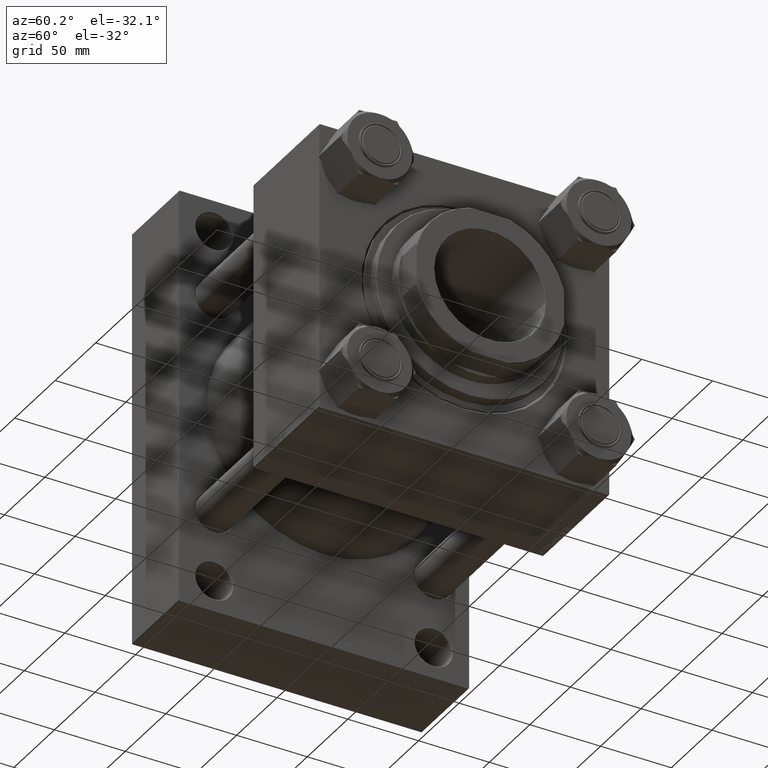
[diagram: clean part render]
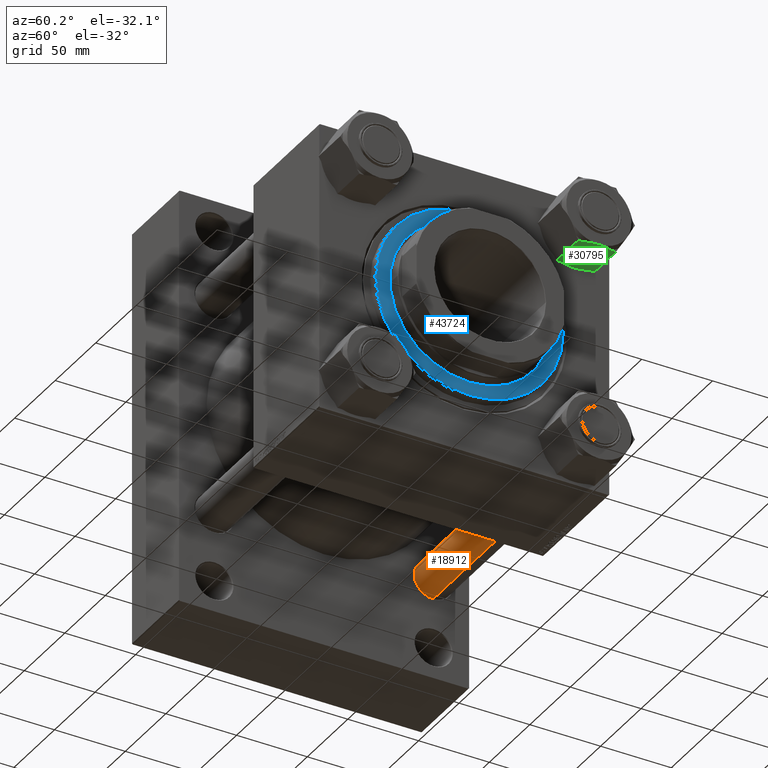
[diagram: same view with three faces highlighted in distinct colors, each labeled with its STEP entity id]
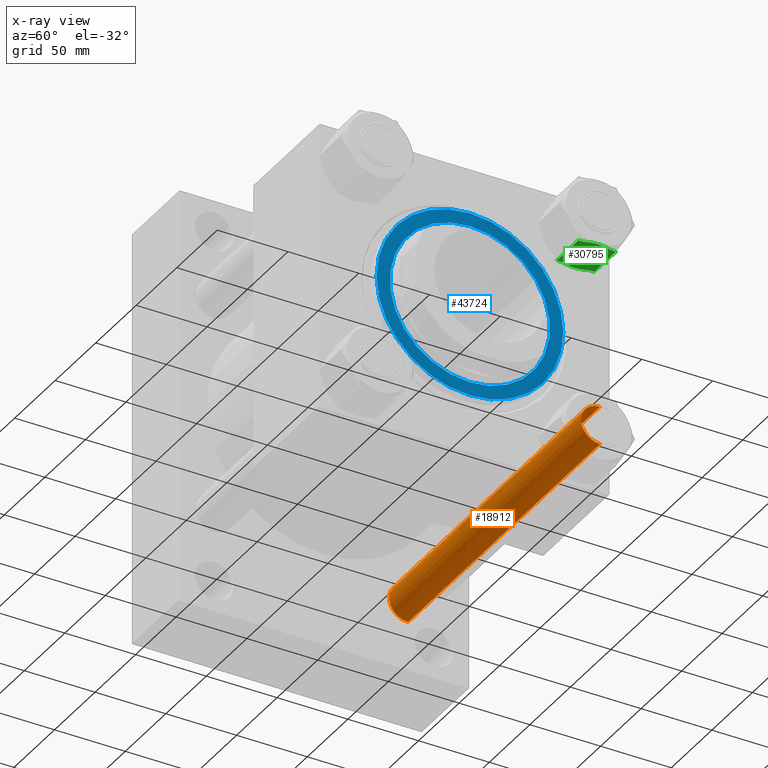
[diagram: x-ray of the same camera — body ghosted, the three highlighted faces saturated]
A machine part, auxiliary view with three faces highlighted in distinct colors.
The next image is the same camera in x-ray (body ghosted, the three faces saturated) — at least one of them is partly hidden behind the body in this view.
Their STEP definitions:

[orange] entity #18912 — the highlighted cylindrical surface (edge-blend (fillet) strip) has radius 13.5 mm, axis along (-1, 0, 0).
#61 = VERTEX_POINT ( 'NONE', #42619 ) ;
#2267 = AXIS2_PLACEMENT_3D ( 'NONE', #41243, #9824, #17482 ) ;
#2341 = EDGE_CURVE ( 'NONE', #61, #2547, #25649, .T. ) ;
#2531 = DIRECTION ( 'NONE',  ( 0.000000000000000000, 0.000000000000000000, -1.000000000000000000 ) ) ;
#2547 = VERTEX_POINT ( 'NONE', #40011 ) ;
#4236 = VECTOR ( 'NONE', #19141, 1000.000000000000000 ) ;
#5855 = CARTESIAN_POINT ( 'NONE',  ( 0.000000000000000000, 0.000000000000000000, 237.5000000000000853 ) ) ;
#8569 = AXIS2_PLACEMENT_3D ( 'NONE', #14091, #45512, #26103 ) ;
#9156 = DIRECTION ( 'NONE',  ( 1.000000000000000000, 0.000000000000000000, 0.000000000000000000 ) ) ;
#9332 = AXIS2_PLACEMENT_3D ( 'NONE', #5855, #2531, #9156 ) ;
#9824 = DIRECTION ( 'NONE',  ( -0.000000000000000000, -0.000000000000000000, 1.000000000000000000 ) ) ;
#12834 = CARTESIAN_POINT ( 'NONE',  ( 13.50000000000000000, 1.653273178848926867E-15, 238.0000000000000000 ) ) ;
#14091 = CARTESIAN_POINT ( 'NONE',  ( 0.000000000000000000, 0.000000000000000000, 238.0000000000000000 ) ) ;
#15808 = LINE ( 'NONE', #31400, #4236 ) ;
#16492 = ORIENTED_EDGE ( 'NONE', *, *, #42775, .F. ) ;
#17438 = DIRECTION ( 'NONE',  ( -0.000000000000000000, -0.000000000000000000, -1.000000000000000000 ) ) ;
#17482 = DIRECTION ( 'NONE',  ( 1.000000000000000000, 0.000000000000000000, 0.000000000000000000 ) ) ;
#17932 = CYLINDRICAL_SURFACE ( 'NONE', #8569, 13.50000000000000000 ) ;
#18912 = ADVANCED_FACE ( 'NONE', ( #21746 ), #17932, .T. ) ;
#19079 = CARTESIAN_POINT ( 'NONE',  ( 13.50000000000000000, 1.653273178848926867E-15, 0.4999999999999726885 ) ) ;
#19141 = DIRECTION ( 'NONE',  ( -0.000000000000000000, -0.000000000000000000, -1.000000000000000000 ) ) ;
#20073 = VERTEX_POINT ( 'NONE', #39315 ) ;
#21746 = FACE_OUTER_BOUND ( 'NONE', #42271, .T. ) ;
#23197 = ORIENTED_EDGE ( 'NONE', *, *, #47221, .T. ) ;
#25649 = CIRCLE ( 'NONE', #9332, 13.50000000000000000 ) ;
#26103 = DIRECTION ( 'NONE',  ( -1.000000000000000000, 0.000000000000000000, 0.000000000000000000 ) ) ;
#28439 = ORIENTED_EDGE ( 'NONE', *, *, #2341, .T. ) ;
#29045 = EDGE_CURVE ( 'NONE', #45544, #20073, #36515, .T. ) ;
#31400 = CARTESIAN_POINT ( 'NONE',  ( -13.50000000000000000, 0.000000000000000000, 238.0000000000000000 ) ) ;
#36515 = CIRCLE ( 'NONE', #2267, 13.50000000000000000 ) ;
#39315 = CARTESIAN_POINT ( 'NONE',  ( -13.50000000000000000, 0.000000000000000000, 0.4999999999999726885 ) ) ;
#39932 = LINE ( 'NONE', #12834, #49702 ) ;
#40011 = CARTESIAN_POINT ( 'NONE',  ( 13.50000000000000000, 1.653273178848926867E-15, 237.5000000000000853 ) ) ;
#41243 = CARTESIAN_POINT ( 'NONE',  ( 0.000000000000000000, 0.000000000000000000, 0.4999999999999726885 ) ) ;
#41576 = ORIENTED_EDGE ( 'NONE', *, *, #29045, .T. ) ;
#42271 = EDGE_LOOP ( 'NONE', ( #28439, #23197, #41576, #16492 ) ) ;
#42619 = CARTESIAN_POINT ( 'NONE',  ( -13.50000000000000000, 0.000000000000000000, 237.5000000000000853 ) ) ;
#42775 = EDGE_CURVE ( 'NONE', #61, #20073, #15808, .T. ) ;
#45512 = DIRECTION ( 'NONE',  ( -0.000000000000000000, -0.000000000000000000, -1.000000000000000000 ) ) ;
#45544 = VERTEX_POINT ( 'NONE', #19079 ) ;
#47221 = EDGE_CURVE ( 'NONE', #2547, #45544, #39932, .T. ) ;
#49702 = VECTOR ( 'NONE', #17438, 1000.000000000000000 ) ;

[blue] entity #43724 — the highlighted planar face has unit normal (1, 0, 0).
#117 = CIRCLE ( 'NONE', #35195, 56.49999999999999289 ) ;
#1309 = ORIENTED_EDGE ( 'NONE', *, *, #11557, .F. ) ;
#2845 = CARTESIAN_POINT ( 'NONE',  ( 0.000000000000000000, 0.000000000000000000, 35.70000000000000284 ) ) ;
#3509 = CARTESIAN_POINT ( 'NONE',  ( -56.49999999999999289, 6.919254415182544548E-15, 35.70000000000000284 ) ) ;
#4271 = EDGE_CURVE ( 'NONE', #49653, #9681, #45307, .T. ) ;
#9681 = VERTEX_POINT ( 'NONE', #21084 ) ;
#10250 = DIRECTION ( 'NONE',  ( 1.000000000000000000, 0.000000000000000000, 0.000000000000000000 ) ) ;
#10331 = AXIS2_PLACEMENT_3D ( 'NONE', #10845, #42259, #34592 ) ;
#10845 = CARTESIAN_POINT ( 'NONE',  ( 0.000000000000000000, 0.000000000000000000, 35.70000000000000284 ) ) ;
#11397 = DIRECTION ( 'NONE',  ( 1.000000000000000000, 0.000000000000000000, -0.000000000000000000 ) ) ;
#11557 = EDGE_CURVE ( 'NONE', #22224, #18905, #16829, .T. ) ;
#11883 = DIRECTION ( 'NONE',  ( 1.000000000000000000, 0.000000000000000000, 0.000000000000000000 ) ) ;
#12969 = CARTESIAN_POINT ( 'NONE',  ( 66.00000000000000000, 8.113285044351216187E-15, 35.70000000000000284 ) ) ;
#13679 = AXIS2_PLACEMENT_3D ( 'NONE', #18301, #29802, #11397 ) ;
#16829 = CIRCLE ( 'NONE', #10331, 56.49999999999999289 ) ;
#18301 = CARTESIAN_POINT ( 'NONE',  ( 0.000000000000000000, 0.000000000000000000, 35.70000000000000284 ) ) ;
#18905 = VERTEX_POINT ( 'NONE', #25582 ) ;
#21084 = CARTESIAN_POINT ( 'NONE',  ( -66.00000000000000000, 0.000000000000000000, 35.70000000000000284 ) ) ;
#21742 = DIRECTION ( 'NONE',  ( 0.000000000000000000, 0.000000000000000000, 1.000000000000000000 ) ) ;
#21785 = ORIENTED_EDGE ( 'NONE', *, *, #41914, .F. ) ;
#21824 = DIRECTION ( 'NONE',  ( 1.000000000000000000, 0.000000000000000000, 0.000000000000000000 ) ) ;
#22224 = VERTEX_POINT ( 'NONE', #3509 ) ;
#22891 = FACE_BOUND ( 'NONE', #34229, .T. ) ;
#25582 = CARTESIAN_POINT ( 'NONE',  ( 56.49999999999999289, 0.000000000000000000, 35.70000000000000284 ) ) ;
#25725 = AXIS2_PLACEMENT_3D ( 'NONE', #2845, #21742, #10250 ) ;
#26353 = EDGE_LOOP ( 'NONE', ( #29344, #36210 ) ) ;
#26730 = AXIS2_PLACEMENT_3D ( 'NONE', #26974, #31063, #11883 ) ;
#26974 = CARTESIAN_POINT ( 'NONE',  ( 0.000000000000000000, 0.000000000000000000, 35.70000000000000284 ) ) ;
#27329 = EDGE_CURVE ( 'NONE', #9681, #49653, #27536, .T. ) ;
#27536 = CIRCLE ( 'NONE', #26730, 66.00000000000000000 ) ;
#29344 = ORIENTED_EDGE ( 'NONE', *, *, #27329, .T. ) ;
#29802 = DIRECTION ( 'NONE',  ( 0.000000000000000000, 0.000000000000000000, 1.000000000000000000 ) ) ;
#30815 = PLANE ( 'NONE',  #13679 ) ;
#31063 = DIRECTION ( 'NONE',  ( 0.000000000000000000, 0.000000000000000000, 1.000000000000000000 ) ) ;
#33585 = CARTESIAN_POINT ( 'NONE',  ( 0.000000000000000000, 0.000000000000000000, 35.70000000000000284 ) ) ;
#34229 = EDGE_LOOP ( 'NONE', ( #21785, #1309 ) ) ;
#34588 = DIRECTION ( 'NONE',  ( 0.000000000000000000, 0.000000000000000000, 1.000000000000000000 ) ) ;
#34592 = DIRECTION ( 'NONE',  ( 1.000000000000000000, 0.000000000000000000, 0.000000000000000000 ) ) ;
#35195 = AXIS2_PLACEMENT_3D ( 'NONE', #33585, #34588, #21824 ) ;
#36210 = ORIENTED_EDGE ( 'NONE', *, *, #4271, .T. ) ;
#38235 = FACE_OUTER_BOUND ( 'NONE', #26353, .T. ) ;
#41914 = EDGE_CURVE ( 'NONE', #18905, #22224, #117, .T. ) ;
#42259 = DIRECTION ( 'NONE',  ( 0.000000000000000000, 0.000000000000000000, 1.000000000000000000 ) ) ;
#43724 = ADVANCED_FACE ( 'NONE', ( #22891, #38235 ), #30815, .T. ) ;
#45307 = CIRCLE ( 'NONE', #25725, 66.00000000000000000 ) ;
#49653 = VERTEX_POINT ( 'NONE', #12969 ) ;

[green] entity #30795 — the highlighted planar face has unit normal (-0, -0, 1).
#1939 = EDGE_CURVE ( 'NONE', #29068, #43513, #17045, .T. ) ;
#2384 = CARTESIAN_POINT ( 'NONE',  ( 6.641506094493679235, -23.05359624874176205, -0.8844859522422295894 ) ) ;
#2641 = CARTESIAN_POINT ( 'NONE',  ( 0.8470567002417638269, -23.05359624874175140, -0.01168982920648786727 ) ) ;
#2675 = DIRECTION ( 'NONE',  ( -1.000000000000000000, -1.303323422972807304E-16, 0.000000000000000000 ) ) ;
#3209 = VERTEX_POINT ( 'NONE', #15342 ) ;
#4069 = CARTESIAN_POINT ( 'NONE',  ( -2.113373616412105971, -23.05359624874176916, -30.90705919660667078 ) ) ;
#4348 = LINE ( 'NONE', #38588, #24445 ) ;
#4563 = CARTESIAN_POINT ( 'NONE',  ( 3.004629197474319246E-15, -23.05359624874176916, -31.00000000000000000 ) ) ;
#5195 = B_SPLINE_CURVE_WITH_KNOTS ( 'NONE', 3,
 ( #10554, #34301, #2641, #18974, #6218, #41962, #49133, #2384, #34045, #6976 ),
 .UNSPECIFIED., .F., .F.,
 ( 4, 2, 2, 2, 4 ),
 ( 0.04709422404877768725, 0.04834823400549317224, 0.04960224396220865029, 0.05211026387563961332, 0.05712630370250153244 ),
 .UNSPECIFIED. ) ;
#5831 = CARTESIAN_POINT ( 'NONE',  ( 3.004629197474319246E-15, -23.05359624874176916, -31.00000000000000000 ) ) ;
#6218 = CARTESIAN_POINT ( 'NONE',  ( 2.113373616412109968, -23.05359624874176205, -0.09294080339332899676 ) ) ;
#6360 = CARTESIAN_POINT ( 'NONE',  ( -5.801497649255014544, -23.05359624874176205, -0.7053567131665616774 ) ) ;
#6587 = B_SPLINE_CURVE_WITH_KNOTS ( 'NONE', 3,
 ( #27839, #43416, #21925, #17328, #6360, #25503, #37260, #32655 ),
 .UNSPECIFIED., .F., .F.,
 ( 4, 2, 2, 4 ),
 ( 0.03704433557245612185, 0.03955680769153651494, 0.04206927981061690802, 0.04709422404877768725 ),
 .UNSPECIFIED. ) ;
#6889 = VECTOR ( 'NONE', #32368, 1000.000000000000000 ) ;
#6976 = CARTESIAN_POINT ( 'NONE',  ( 9.808893158505085808, -23.05359624874176205, -2.000000000000000000 ) ) ;
#7013 = CARTESIAN_POINT ( 'NONE',  ( 13.31000000000000938, -23.05359624874175850, -28.99999999999999645 ) ) ;
#7377 = B_SPLINE_CURVE_WITH_KNOTS ( 'NONE', 3,
 ( #13471, #24470, #48734, #39803, #44902, #40551, #21391, #5831 ),
 .UNSPECIFIED., .F., .F.,
 ( 4, 2, 2, 4 ),
 ( 0.03704433557245612185, 0.03955680769153651494, 0.04206927981061690802, 0.04709422404877769419 ),
 .UNSPECIFIED. ) ;
#8081 = CARTESIAN_POINT ( 'NONE',  ( 13.31000000000000938, -23.05359624874175850, -31.00000000000000000 ) ) ;
#9421 = EDGE_CURVE ( 'NONE', #43513, #44210, #6587, .T. ) ;
#10554 = CARTESIAN_POINT ( 'NONE',  ( 3.004629197474320035E-15, -23.05359624874177271, 0.000000000000000000 ) ) ;
#13471 = CARTESIAN_POINT ( 'NONE',  ( 9.808893158505096466, -23.05359624874176205, -28.99999999999999645 ) ) ;
#14258 = CARTESIAN_POINT ( 'NONE',  ( 13.31000000000000938, -23.05359624874175850, -31.00000000000000000 ) ) ;
#14836 = ORIENTED_EDGE ( 'NONE', *, *, #34249, .F. ) ;
#15342 = CARTESIAN_POINT ( 'NONE',  ( -9.808893158505089360, -23.05359624874176205, -28.99999999999999645 ) ) ;
#16951 = EDGE_CURVE ( 'NONE', #34402, #3209, #40022, .T. ) ;
#17045 = LINE ( 'NONE', #24701, #6889 ) ;
#17322 = FACE_OUTER_BOUND ( 'NONE', #47992, .T. ) ;
#17328 = CARTESIAN_POINT ( 'NONE',  ( -6.612214801278793352, -23.05359624874175495, -0.9172679422720545483 ) ) ;
#17583 = PLANE ( 'NONE',  #42344 ) ;
#18674 = EDGE_CURVE ( 'NONE', #27174, #33102, #46581, .T. ) ;
#18974 = CARTESIAN_POINT ( 'NONE',  ( 1.693046291327868325, -23.05359624874175850, -0.05822588947892674838 ) ) ;
#19416 = DIRECTION ( 'NONE',  ( -1.000000000000000000, -1.303323422972807304E-16, 0.000000000000000000 ) ) ;
#19882 = CARTESIAN_POINT ( 'NONE',  ( -9.808893158505089360, -23.05359624874176205, -28.99999999999999645 ) ) ;
#21391 = CARTESIAN_POINT ( 'NONE',  ( 1.690332161126413713, -23.05359624874176205, -31.00000000000001421 ) ) ;
#21820 = LINE ( 'NONE', #7013, #47782 ) ;
#21925 = CARTESIAN_POINT ( 'NONE',  ( -8.222377524857041209, -23.05359624874176205, -1.410427084452070101 ) ) ;
#22064 = EDGE_CURVE ( 'NONE', #41763, #34402, #7377, .T. ) ;
#22372 = CARTESIAN_POINT ( 'NONE',  ( 9.808893158505085808, -23.05359624874176205, -2.000000000000000000 ) ) ;
#22503 = ORIENTED_EDGE ( 'NONE', *, *, #26388, .F. ) ;
#22958 = CARTESIAN_POINT ( 'NONE',  ( -0.8470567002417592750, -23.05359624874176561, -30.98831017079351113 ) ) ;
#23205 = CARTESIAN_POINT ( 'NONE',  ( -4.192182187841030583, -23.05359624874176561, -30.63552287451819467 ) ) ;
#23464 = CARTESIAN_POINT ( 'NONE',  ( -6.641506094493685453, -23.05359624874176916, -30.11551404775777030 ) ) ;
#23653 = DIRECTION ( 'NONE',  ( -0.000000000000000000, -0.000000000000000000, 1.000000000000000000 ) ) ;
#24445 = VECTOR ( 'NONE', #19416, 1000.000000000000000 ) ;
#24470 = CARTESIAN_POINT ( 'NONE',  ( 9.024432966208934204, -23.05359624874176561, -29.30712901002066673 ) ) ;
#24483 = EDGE_CURVE ( 'NONE', #47414, #41763, #21820, .T. ) ;
#24701 = CARTESIAN_POINT ( 'NONE',  ( 13.31000000000000938, -23.05359624874175850, -2.000000000000001776 ) ) ;
#25503 = CARTESIAN_POINT ( 'NONE',  ( -3.350210548520257792, -23.05359624874175850, -0.1873351914320835754 ) ) ;
#26388 = EDGE_CURVE ( 'NONE', #44210, #27174, #5195, .T. ) ;
#27174 = VERTEX_POINT ( 'NONE', #22372 ) ;
#27839 = CARTESIAN_POINT ( 'NONE',  ( -9.808893158505080478, -23.05359624874176205, -2.000000000000000000 ) ) ;
#28770 = CARTESIAN_POINT ( 'NONE',  ( -9.808893158505080478, -23.05359624874176205, -2.000000000000000000 ) ) ;
#29068 = VERTEX_POINT ( 'NONE', #48918 ) ;
#30464 = CARTESIAN_POINT ( 'NONE',  ( 13.31000000000000938, -23.05359624874175850, -28.99999999999999645 ) ) ;
#30745 = DIRECTION ( 'NONE',  ( 1.000000000000000000, 1.303323422972807304E-16, -0.000000000000000000 ) ) ;
#30795 = ADVANCED_FACE ( 'NONE', ( #17322 ), #17583, .F. ) ;
#31143 = CARTESIAN_POINT ( 'NONE',  ( -0.4218342054646813666, -23.05359624874176205, -31.00000000000001066 ) ) ;
#31865 = LINE ( 'NONE', #39771, #45581 ) ;
#32217 = VECTOR ( 'NONE', #30745, 1000.000000000000000 ) ;
#32336 = CARTESIAN_POINT ( 'NONE',  ( 3.004629197474319246E-15, -23.05359624874176916, -31.00000000000000000 ) ) ;
#32368 = DIRECTION ( 'NONE',  ( 1.000000000000000000, 1.303323422972807304E-16, -0.000000000000000000 ) ) ;
#32655 = CARTESIAN_POINT ( 'NONE',  ( 3.004629197474320035E-15, -23.05359624874177271, 0.000000000000000000 ) ) ;
#32721 = VECTOR ( 'NONE', #23653, 1000.000000000000000 ) ;
#33102 = VERTEX_POINT ( 'NONE', #35252 ) ;
#34045 = CARTESIAN_POINT ( 'NONE',  ( 8.238500401260312245, -23.05359624874175495, -1.385165521956630785 ) ) ;
#34249 = EDGE_CURVE ( 'NONE', #47393, #29068, #31865, .T. ) ;
#34298 = CARTESIAN_POINT ( 'NONE',  ( -13.31000000000000405, -23.05359624874176205, -28.99999999999999645 ) ) ;
#34301 = CARTESIAN_POINT ( 'NONE',  ( 0.4218342054646910810, -23.05359624874176205, 1.211341817868374915E-14 ) ) ;
#34402 = VERTEX_POINT ( 'NONE', #32336 ) ;
#34646 = CARTESIAN_POINT ( 'NONE',  ( 9.808893158505096466, -23.05359624874176205, -28.99999999999999645 ) ) ;
#35252 = CARTESIAN_POINT ( 'NONE',  ( 13.31000000000000938, -23.05359624874175850, -2.000000000000001776 ) ) ;
#35816 = ORIENTED_EDGE ( 'NONE', *, *, #9421, .F. ) ;
#36211 = ORIENTED_EDGE ( 'NONE', *, *, #1939, .F. ) ;
#36314 = ORIENTED_EDGE ( 'NONE', *, *, #18674, .F. ) ;
#37260 = CARTESIAN_POINT ( 'NONE',  ( -1.690332161126401278, -23.05359624874176205, 1.223793202193012972E-14 ) ) ;
#37819 = EDGE_CURVE ( 'NONE', #3209, #47393, #4348, .T. ) ;
#38588 = CARTESIAN_POINT ( 'NONE',  ( 13.31000000000000938, -23.05359624874175850, -28.99999999999999645 ) ) ;
#38990 = LINE ( 'NONE', #8081, #32721 ) ;
#39310 = CARTESIAN_POINT ( 'NONE',  ( -3.366747807636260692, -23.05359624874176916, -30.77026726310296922 ) ) ;
#39549 = CARTESIAN_POINT ( 'NONE',  ( -8.238500401260319350, -23.05359624874176916, -29.61483447804337743 ) ) ;
#39771 = CARTESIAN_POINT ( 'NONE',  ( -13.31000000000000405, -23.05359624874176205, -31.00000000000000000 ) ) ;
#39803 = CARTESIAN_POINT ( 'NONE',  ( 6.612214801278806675, -23.05359624874175850, -30.08273205772793446 ) ) ;
#40022 = B_SPLINE_CURVE_WITH_KNOTS ( 'NONE', 3,
 ( #4563, #31143, #22958, #46716, #4069, #39310, #23205, #23464, #39549, #19882 ),
 .UNSPECIFIED., .F., .F.,
 ( 4, 2, 2, 2, 4 ),
 ( 0.04709422404877769419, 0.04834823400549317918, 0.04960224396220866416, 0.05211026387563962720, 0.05712630370250156020 ),
 .UNSPECIFIED. ) ;
#40551 = CARTESIAN_POINT ( 'NONE',  ( 3.350210548520272003, -23.05359624874176205, -30.81266480856791290 ) ) ;
#41161 = EDGE_CURVE ( 'NONE', #47414, #33102, #38990, .T. ) ;
#41763 = VERTEX_POINT ( 'NONE', #34646 ) ;
#41962 = CARTESIAN_POINT ( 'NONE',  ( 3.366747807636262912, -23.05359624874175850, -0.2297327368970329131 ) ) ;
#42344 = AXIS2_PLACEMENT_3D ( 'NONE', #14258, #44654, #45418 ) ;
#42865 = DIRECTION ( 'NONE',  ( -0.000000000000000000, -0.000000000000000000, 1.000000000000000000 ) ) ;
#42996 = CARTESIAN_POINT ( 'NONE',  ( 13.31000000000000938, -23.05359624874175850, -2.000000000000001776 ) ) ;
#43416 = CARTESIAN_POINT ( 'NONE',  ( -9.024432966208918216, -23.05359624874176561, -1.692870989979335050 ) ) ;
#43513 = VERTEX_POINT ( 'NONE', #28770 ) ;
#44210 = VERTEX_POINT ( 'NONE', #45963 ) ;
#44505 = ORIENTED_EDGE ( 'NONE', *, *, #16951, .F. ) ;
#44654 = DIRECTION ( 'NONE',  ( -1.303323422972807304E-16, 1.000000000000000000, 0.000000000000000000 ) ) ;
#44902 = CARTESIAN_POINT ( 'NONE',  ( 5.801497649255033195, -23.05359624874176205, -30.29464328683343055 ) ) ;
#45418 = DIRECTION ( 'NONE',  ( -1.000000000000000000, -1.303323422972807304E-16, 0.000000000000000000 ) ) ;
#45581 = VECTOR ( 'NONE', #42865, 1000.000000000000000 ) ;
#45950 = ORIENTED_EDGE ( 'NONE', *, *, #37819, .F. ) ;
#45963 = CARTESIAN_POINT ( 'NONE',  ( 3.004629197474320035E-15, -23.05359624874177271, 0.000000000000000000 ) ) ;
#46096 = ORIENTED_EDGE ( 'NONE', *, *, #41161, .T. ) ;
#46581 = LINE ( 'NONE', #42996, #32217 ) ;
#46716 = CARTESIAN_POINT ( 'NONE',  ( -1.693046291327864772, -23.05359624874175850, -30.94177411052107018 ) ) ;
#47393 = VERTEX_POINT ( 'NONE', #34298 ) ;
#47414 = VERTEX_POINT ( 'NONE', #30464 ) ;
#47782 = VECTOR ( 'NONE', #2675, 1000.000000000000000 ) ;
#47992 = EDGE_LOOP ( 'NONE', ( #50191, #46096, #36314, #22503, #35816, #36211, #14836, #45950, #44505, #48573 ) ) ;
#48573 = ORIENTED_EDGE ( 'NONE', *, *, #22064, .F. ) ;
#48734 = CARTESIAN_POINT ( 'NONE',  ( 8.222377524857057196, -23.05359624874175850, -29.58957291554792235 ) ) ;
#48918 = CARTESIAN_POINT ( 'NONE',  ( -13.31000000000000405, -23.05359624874176205, -2.000000000000001776 ) ) ;
#49133 = CARTESIAN_POINT ( 'NONE',  ( 4.192182187841031471, -23.05359624874176205, -0.3644771254818050532 ) ) ;
#50191 = ORIENTED_EDGE ( 'NONE', *, *, #24483, .F. ) ;